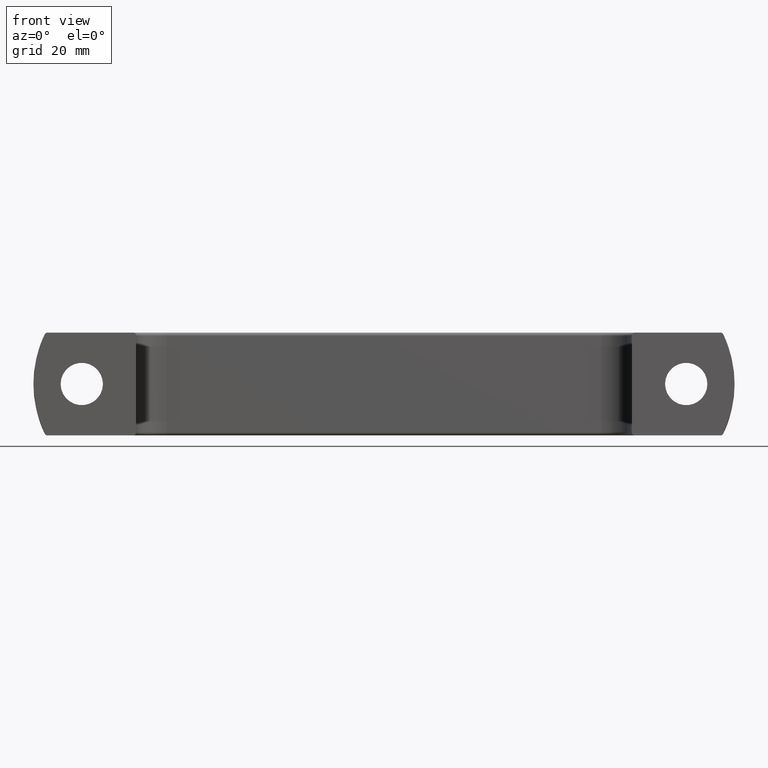
[diagram: clean part render]
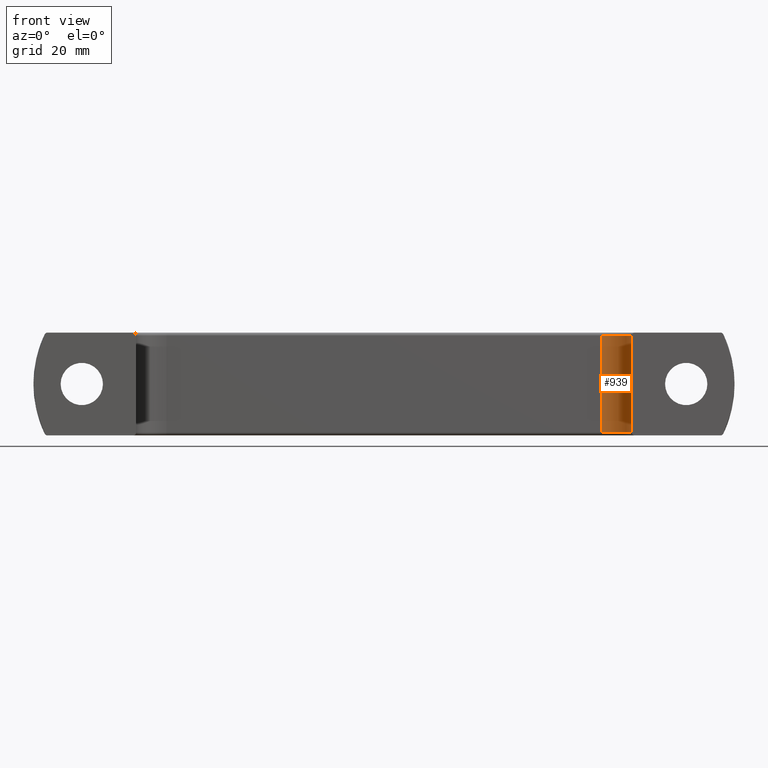
[diagram: same view with one face highlighted and labeled with its STEP entity id]
A machine part, front view. The second image highlights one B-rep face of the part: STEP entity #939.
In plain terms, the highlighted cylindrical surface (edge-blend (fillet) strip) has radius 5 mm, axis along (0, 0, 1).
Its self-contained STEP definition (entity closure, byte-faithful):
#75=LINE('',#1449,#133);
#76=LINE('',#1452,#134);
#133=VECTOR('',#1173,16.);
#134=VECTOR('',#1176,16.);
#203=CYLINDRICAL_SURFACE('',#1020,5.);
#239=FACE_OUTER_BOUND('',#303,.T.);
#303=EDGE_LOOP('',(#673,#674,#675,#676));
#372=CIRCLE('',#1017,5.);
#374=CIRCLE('',#1021,5.);
#423=VERTEX_POINT('',#1430);
#425=VERTEX_POINT('',#1436);
#429=VERTEX_POINT('',#1448);
#430=VERTEX_POINT('',#1450);
#518=EDGE_CURVE('',#423,#425,#372,.T.);
#522=EDGE_CURVE('',#429,#423,#75,.T.);
#523=EDGE_CURVE('',#430,#429,#374,.T.);
#524=EDGE_CURVE('',#430,#425,#76,.T.);
#673=ORIENTED_EDGE('',*,*,#518,.F.);
#674=ORIENTED_EDGE('',*,*,#522,.F.);
#675=ORIENTED_EDGE('',*,*,#523,.F.);
#676=ORIENTED_EDGE('',*,*,#524,.T.);
#939=ADVANCED_FACE('',(#239),#203,.F.);
#1017=AXIS2_PLACEMENT_3D('',#1440,#1163,#1164);
#1020=AXIS2_PLACEMENT_3D('',#1447,#1171,#1172);
#1021=AXIS2_PLACEMENT_3D('',#1451,#1174,#1175);
#1163=DIRECTION('center_axis',(0.,0.,-1.));
#1164=DIRECTION('ref_axis',(0.707106781186549,0.707106781186546,0.));
#1171=DIRECTION('center_axis',(0.,0.,1.));
#1172=DIRECTION('ref_axis',(-1.,1.77635683940025E-15,0.));
#1173=DIRECTION('',(0.,0.,1.));
#1174=DIRECTION('center_axis',(0.,0.,1.));
#1175=DIRECTION('ref_axis',(0.707106781186549,0.707106781186546,0.));
#1176=DIRECTION('',(0.,0.,1.));
#1430=CARTESIAN_POINT('',(94.,25.,8.));
#1436=CARTESIAN_POINT('',(99.,20.,8.));
#1440=CARTESIAN_POINT('Origin',(94.,20.,8.));
#1447=CARTESIAN_POINT('Origin',(94.,20.,0.));
#1448=CARTESIAN_POINT('',(94.,25.,-8.));
#1449=CARTESIAN_POINT('',(94.,25.,0.));
#1450=CARTESIAN_POINT('',(99.,20.,-8.));
#1451=CARTESIAN_POINT('Origin',(94.,20.,-8.));
#1452=CARTESIAN_POINT('',(99.,20.,0.));